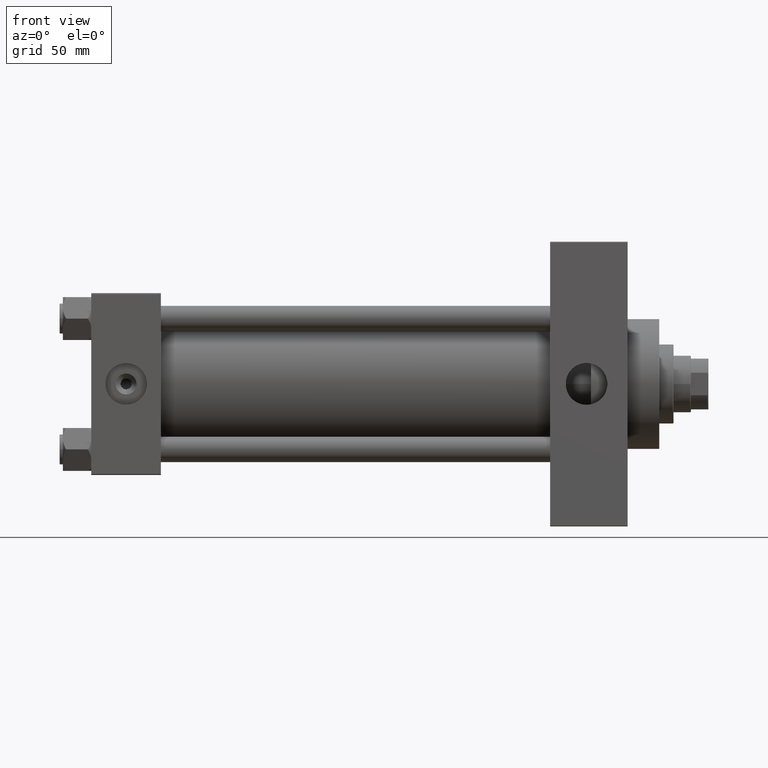
[diagram: clean part render]
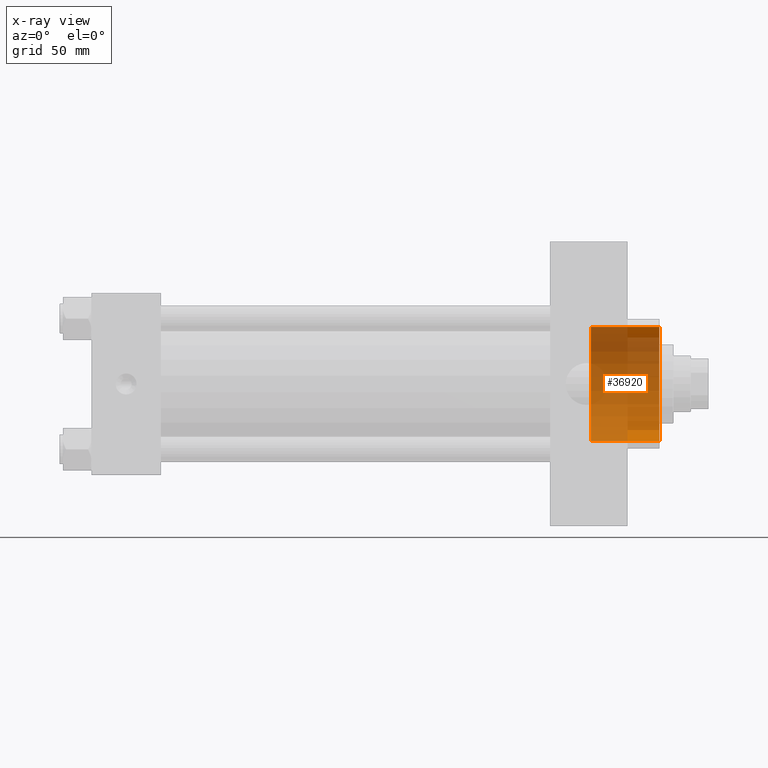
[diagram: x-ray — body ghosted, one internal face saturated and labeled with its STEP entity id]
A machine part, front view, then the same camera in x-ray: the body is ghosted and one INTERNAL B-rep face — a face not visible from any outside direction — is saturated and labeled: STEP entity #36920.
In plain terms, the highlighted cylindrical surface (partial cylindrical patch) has radius 36 mm, axis along (1, 0, 0).
Its self-contained STEP definition (entity closure, byte-faithful):
#1446 = DIRECTION ( 'NONE',  ( 1.000000000000000000, 0.000000000000000000, 0.000000000000000000 ) ) ;
#1852 = DIRECTION ( 'NONE',  ( 1.000000000000000000, -0.000000000000000000, -0.000000000000000000 ) ) ;
#2234 = CARTESIAN_POINT ( 'NONE',  ( 315.7399999999999523, 0.000000000000000000, -36.00000000000000000 ) ) ;
#3224 = EDGE_CURVE ( 'NONE', #11958, #31805, #41938, .T. ) ;
#4899 = CARTESIAN_POINT ( 'NONE',  ( 315.7399999999999523, 4.408728476930470856E-15, 36.00000000000000000 ) ) ;
#5504 = DIRECTION ( 'NONE',  ( 1.000000000000000000, -0.000000000000000000, -0.000000000000000000 ) ) ;
#5970 = CYLINDRICAL_SURFACE ( 'NONE', #22740, 36.00000000000000000 ) ;
#6109 = CARTESIAN_POINT ( 'NONE',  ( 359.0000000000000000, 0.000000000000000000, -36.00000000000000000 ) ) ;
#6560 = AXIS2_PLACEMENT_3D ( 'NONE', #32905, #25670, #13652 ) ;
#6605 = CARTESIAN_POINT ( 'NONE',  ( 359.0000000000000000, 4.408728476930470856E-15, 36.00000000000000000 ) ) ;
#9119 = CARTESIAN_POINT ( 'NONE',  ( 315.7399999999999523, 0.000000000000000000, 0.000000000000000000 ) ) ;
#9173 = DIRECTION ( 'NONE',  ( 0.000000000000000000, 0.000000000000000000, -1.000000000000000000 ) ) ;
#11599 = EDGE_CURVE ( 'NONE', #11958, #34368, #19975, .T. ) ;
#11958 = VERTEX_POINT ( 'NONE', #2234 ) ;
#13652 = DIRECTION ( 'NONE',  ( 0.000000000000000000, 0.000000000000000000, -1.000000000000000000 ) ) ;
#14021 = CIRCLE ( 'NONE', #20955, 36.00000000000000000 ) ;
#16601 = CARTESIAN_POINT ( 'NONE',  ( 315.7399999999999523, 0.000000000000000000, -36.00000000000000000 ) ) ;
#17056 = DIRECTION ( 'NONE',  ( 0.000000000000000000, 0.000000000000000000, -1.000000000000000000 ) ) ;
#17584 = ORIENTED_EDGE ( 'NONE', *, *, #27830, .T. ) ;
#19975 = LINE ( 'NONE', #16601, #36714 ) ;
#20955 = AXIS2_PLACEMENT_3D ( 'NONE', #23640, #1446, #9173 ) ;
#21069 = VECTOR ( 'NONE', #29983, 1000.000000000000000 ) ;
#22034 = VERTEX_POINT ( 'NONE', #6605 ) ;
#22740 = AXIS2_PLACEMENT_3D ( 'NONE', #9119, #1852, #17056 ) ;
#22893 = ORIENTED_EDGE ( 'NONE', *, *, #46783, .F. ) ;
#23640 = CARTESIAN_POINT ( 'NONE',  ( 359.0000000000000000, 0.000000000000000000, 0.000000000000000000 ) ) ;
#25670 = DIRECTION ( 'NONE',  ( 1.000000000000000000, 0.000000000000000000, 0.000000000000000000 ) ) ;
#25764 = ORIENTED_EDGE ( 'NONE', *, *, #3224, .F. ) ;
#26843 = LINE ( 'NONE', #4899, #21069 ) ;
#27830 = EDGE_CURVE ( 'NONE', #34368, #22034, #14021, .T. ) ;
#29983 = DIRECTION ( 'NONE',  ( 1.000000000000000000, -0.000000000000000000, -0.000000000000000000 ) ) ;
#31805 = VERTEX_POINT ( 'NONE', #39371 ) ;
#32905 = CARTESIAN_POINT ( 'NONE',  ( 315.7399999999999523, 0.000000000000000000, 0.000000000000000000 ) ) ;
#34368 = VERTEX_POINT ( 'NONE', #6109 ) ;
#36714 = VECTOR ( 'NONE', #5504, 1000.000000000000000 ) ;
#36920 = ADVANCED_FACE ( 'NONE', ( #38972 ), #5970, .F. ) ;
#38972 = FACE_OUTER_BOUND ( 'NONE', #40506, .T. ) ;
#39371 = CARTESIAN_POINT ( 'NONE',  ( 315.7399999999999523, 4.408728476930470856E-15, 36.00000000000000000 ) ) ;
#39610 = ORIENTED_EDGE ( 'NONE', *, *, #11599, .T. ) ;
#40506 = EDGE_LOOP ( 'NONE', ( #22893, #25764, #39610, #17584 ) ) ;
#41938 = CIRCLE ( 'NONE', #6560, 36.00000000000000000 ) ;
#46783 = EDGE_CURVE ( 'NONE', #31805, #22034, #26843, .T. ) ;